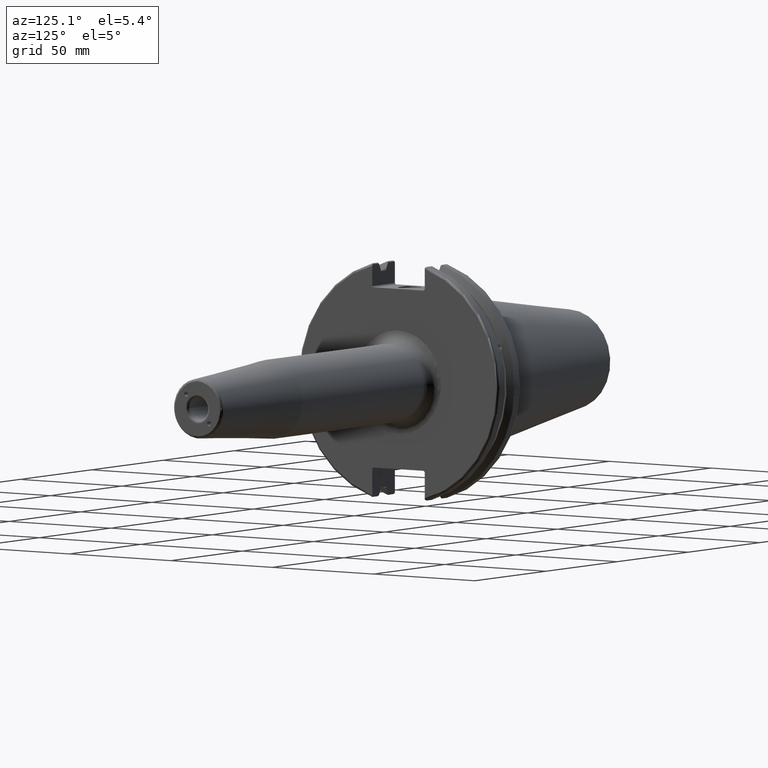
[diagram: clean part render]
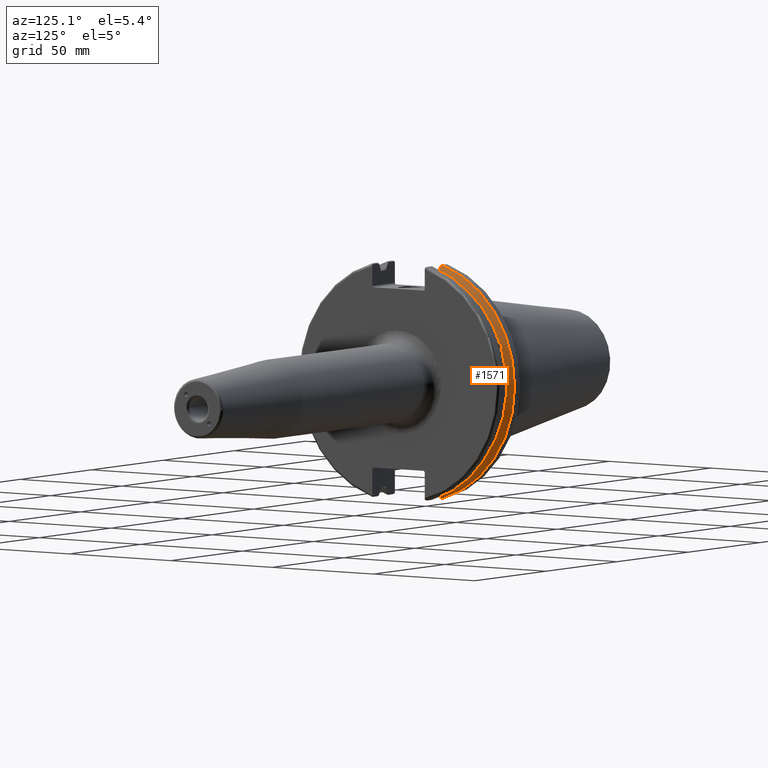
[diagram: same view with one face highlighted and labeled with its STEP entity id]
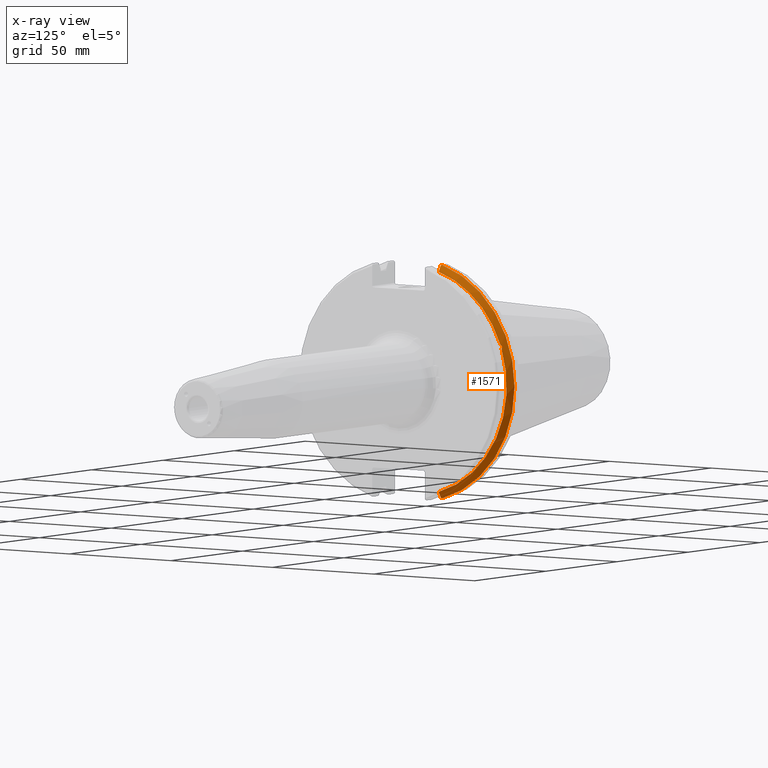
[diagram: x-ray of the same camera — body ghosted, the highlighted face saturated]
A machine part, auxiliary view. The second image highlights one B-rep face of the part: STEP entity #1571.
The next image is the same camera in x-ray: the body ghosted, the highlighted face saturated — about 0% of this face is hidden behind the body in this view.
In plain terms, the highlighted conical surface has half-angle 60 deg.
Its self-contained STEP definition (entity closure, byte-faithful):
#19=(
BOUNDED_CURVE()
B_SPLINE_CURVE(2,(#2869,#2870,#2871),.UNSPECIFIED.,.F.,.F.)
B_SPLINE_CURVE_WITH_KNOTS((3,3),(0.,0.275823910674652),.UNSPECIFIED.)
CURVE()
GEOMETRIC_REPRESENTATION_ITEM()
RATIONAL_B_SPLINE_CURVE((1.,1.00038235573731,1.00012873636533))
REPRESENTATION_ITEM('')
);
#20=(
BOUNDED_CURVE()
B_SPLINE_CURVE(2,(#2873,#2874,#2875),.UNSPECIFIED.,.F.,.F.)
B_SPLINE_CURVE_WITH_KNOTS((3,3),(0.,0.0648240472898323),.UNSPECIFIED.)
CURVE()
GEOMETRIC_REPRESENTATION_ITEM()
RATIONAL_B_SPLINE_CURVE((1.,1.00011477674853,1.00019140645976))
REPRESENTATION_ITEM('')
);
#21=(
BOUNDED_CURVE()
B_SPLINE_CURVE(2,(#2879,#2880,#2881),.UNSPECIFIED.,.F.,.F.)
B_SPLINE_CURVE_WITH_KNOTS((3,3),(0.325260944932483,0.390084992222205),
 .UNSPECIFIED.)
CURVE()
GEOMETRIC_REPRESENTATION_ITEM()
RATIONAL_B_SPLINE_CURVE((1.00019140645955,1.00011477674841,1.))
REPRESENTATION_ITEM('')
);
#22=(
BOUNDED_CURVE()
B_SPLINE_CURVE(2,(#2883,#2884,#2885),.UNSPECIFIED.,.F.,.F.)
B_SPLINE_CURVE_WITH_KNOTS((3,3),(0.0558332664491378,0.331657177124507),
 .UNSPECIFIED.)
CURVE()
GEOMETRIC_REPRESENTATION_ITEM()
RATIONAL_B_SPLINE_CURVE((1.00012873637135,1.00038235575519,1.))
REPRESENTATION_ITEM('')
);
#50=B_SPLINE_CURVE_WITH_KNOTS('',3,(#2822,#2823,#2824,#2825,#2826,#2827,
#2828,#2829,#2830,#2831,#2832,#2833,#2834,#2835),.UNSPECIFIED.,.F.,.F.,
(4,2,2,2,2,2,4),(0.426712868358718,0.441644498666905,0.480313313223129,
0.518982127779353,0.557650942335577,0.596319756891801,0.611251387199986),
 .UNSPECIFIED.);
#76=CONICAL_SURFACE('',#1729,47.8172386482472,1.0471975511966);
#410=FACE_OUTER_BOUND('',#515,.T.);
#515=EDGE_LOOP('',(#1237,#1238,#1239,#1240,#1241,#1242,#1243,#1244));
#620=CIRCLE('',#1730,46.4219772964944);
#621=CIRCLE('',#1731,49.2125);
#622=CIRCLE('',#1732,46.4219772964944);
#741=VERTEX_POINT('',#2819);
#742=VERTEX_POINT('',#2821);
#746=VERTEX_POINT('',#2866);
#747=VERTEX_POINT('',#2868);
#748=VERTEX_POINT('',#2872);
#749=VERTEX_POINT('',#2876);
#750=VERTEX_POINT('',#2878);
#751=VERTEX_POINT('',#2882);
#925=EDGE_CURVE('',#742,#741,#50,.T.);
#930=EDGE_CURVE('',#746,#741,#620,.T.);
#931=EDGE_CURVE('',#746,#747,#19,.T.);
#932=EDGE_CURVE('',#748,#747,#20,.T.);
#933=EDGE_CURVE('',#748,#749,#621,.T.);
#934=EDGE_CURVE('',#750,#749,#21,.T.);
#935=EDGE_CURVE('',#750,#751,#22,.T.);
#936=EDGE_CURVE('',#742,#751,#622,.T.);
#1237=ORIENTED_EDGE('',*,*,#925,.T.);
#1238=ORIENTED_EDGE('',*,*,#930,.F.);
#1239=ORIENTED_EDGE('',*,*,#931,.T.);
#1240=ORIENTED_EDGE('',*,*,#932,.F.);
#1241=ORIENTED_EDGE('',*,*,#933,.T.);
#1242=ORIENTED_EDGE('',*,*,#934,.F.);
#1243=ORIENTED_EDGE('',*,*,#935,.T.);
#1244=ORIENTED_EDGE('',*,*,#936,.F.);
#1571=ADVANCED_FACE('',(#410),#76,.T.);
#1729=AXIS2_PLACEMENT_3D('',#2865,#2029,#2030);
#1730=AXIS2_PLACEMENT_3D('',#2867,#2031,#2032);
#1731=AXIS2_PLACEMENT_3D('',#2877,#2033,#2034);
#1732=AXIS2_PLACEMENT_3D('',#2886,#2035,#2036);
#2029=DIRECTION('center_axis',(-1.,0.,0.));
#2030=DIRECTION('ref_axis',(0.,1.,0.));
#2031=DIRECTION('center_axis',(1.,0.,0.));
#2032=DIRECTION('ref_axis',(0.,0.,-1.));
#2033=DIRECTION('center_axis',(1.,0.,0.));
#2034=DIRECTION('ref_axis',(0.,0.,-1.));
#2035=DIRECTION('center_axis',(1.,0.,0.));
#2036=DIRECTION('ref_axis',(0.,0.,-1.));
#2819=CARTESIAN_POINT('',(9.2191,43.9096390749305,15.0646464421033));
#2821=CARTESIAN_POINT('',(9.2191,43.3201030900029,16.684383248648));
#2822=CARTESIAN_POINT('Ctrl Pts',(9.21910000000001,43.3201030900029,16.6843832486479));
#2823=CARTESIAN_POINT('Ctrl Pts',(9.20211843903392,43.3613106941341,16.6592273018006));
#2824=CARTESIAN_POINT('Ctrl Pts',(9.18608675403323,43.4012416983557,16.6326763251437));
#2825=CARTESIAN_POINT('Ctrl Pts',(9.13238673845037,43.539103734322,16.5325130832406));
#2826=CARTESIAN_POINT('Ctrl Pts',(9.09621610663555,43.6406982153491,16.441180795372));
#2827=CARTESIAN_POINT('Ctrl Pts',(9.04690868251975,43.8110833825827,16.2291323464527));
#2828=CARTESIAN_POINT('Ctrl Pts',(9.0341,43.8794096049168,16.10796730316));
#2829=CARTESIAN_POINT('Ctrl Pts',(9.0341,43.9675796948952,15.8657219718732));
#2830=CARTESIAN_POINT('Ctrl Pts',(9.04690868251975,43.9931221605126,15.7289849146254));
#2831=CARTESIAN_POINT('Ctrl Pts',(9.09621610663555,43.9989016655819,15.4570249042868));
#2832=CARTESIAN_POINT('Ctrl Pts',(9.13238673845037,43.9797830409458,15.3217566390708));
#2833=CARTESIAN_POINT('Ctrl Pts',(9.18608675403322,43.9385582852181,15.1564111356409));
#2834=CARTESIAN_POINT('Ctrl Pts',(9.20211843903391,43.9250360001461,15.1104047527575));
#2835=CARTESIAN_POINT('Ctrl Pts',(9.2191,43.9096390749305,15.0646464421033));
#2865=CARTESIAN_POINT('Origin',(8.41354548297563,0.,0.));
#2866=CARTESIAN_POINT('',(9.2191,12.95,-44.5791147973604));
#2867=CARTESIAN_POINT('Origin',(9.2191,0.,0.));
#2868=CARTESIAN_POINT('',(7.88638960562424,12.95,-46.9780755322918));
#2869=CARTESIAN_POINT('Ctrl Pts',(9.2191,12.95,-44.5791147973604));
#2870=CARTESIAN_POINT('Ctrl Pts',(8.57020449055827,12.95,-45.7494966802153));
#2871=CARTESIAN_POINT('Ctrl Pts',(7.88638960562424,12.95,-46.9780755322918));
#2872=CARTESIAN_POINT('',(7.60799096595127,13.4317035994433,-47.3440544806494));
#2873=CARTESIAN_POINT('Ctrl Pts',(7.60799096595127,13.4317035994433,-47.3440544806494));
#2874=CARTESIAN_POINT('Ctrl Pts',(7.74826896663818,13.1896660169966,-47.1601640966265));
#2875=CARTESIAN_POINT('Ctrl Pts',(7.88638960562424,12.95,-46.9780755322918));
#2876=CARTESIAN_POINT('',(7.60799096595127,13.4317035994433,47.3440544806494));
#2877=CARTESIAN_POINT('Origin',(7.60799096595127,0.,0.));
#2878=CARTESIAN_POINT('',(7.88638960562424,12.95,46.9780755322918));
#2879=CARTESIAN_POINT('Ctrl Pts',(7.88638960562424,12.95,46.9780755322917));
#2880=CARTESIAN_POINT('Ctrl Pts',(7.74826896663821,13.1896660169966,47.1601640966264));
#2881=CARTESIAN_POINT('Ctrl Pts',(7.60799096595127,13.4317035994433,47.3440544806494));
#2882=CARTESIAN_POINT('',(9.2191,12.95,44.5791147973604));
#2883=CARTESIAN_POINT('Ctrl Pts',(7.88638960562424,12.95,46.9780755322918));
#2884=CARTESIAN_POINT('Ctrl Pts',(8.57020449055492,12.95,45.7494966802213));
#2885=CARTESIAN_POINT('Ctrl Pts',(9.2191,12.95,44.5791147973604));
#2886=CARTESIAN_POINT('Origin',(9.2191,0.,0.));